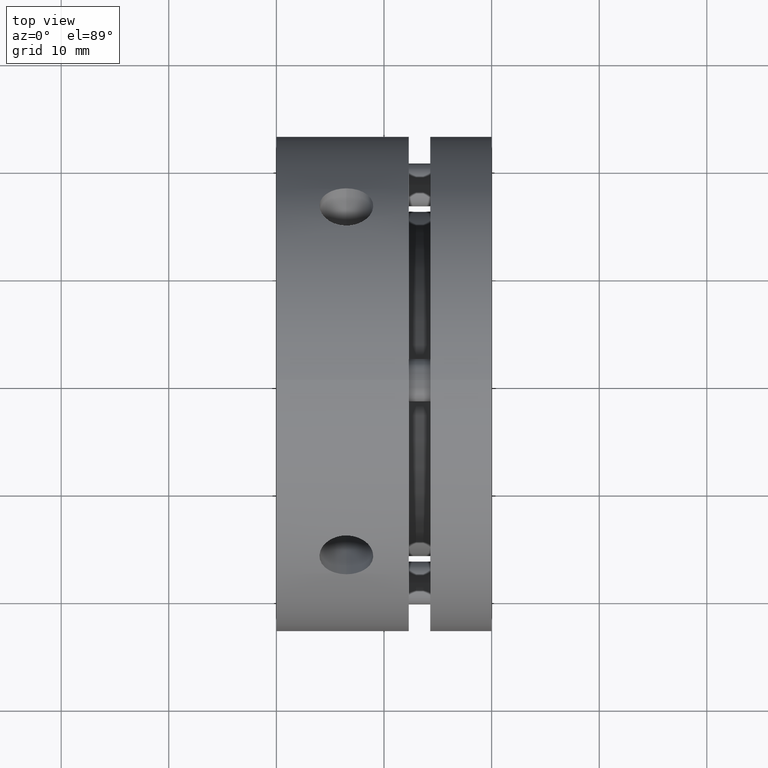
[diagram: clean part render]
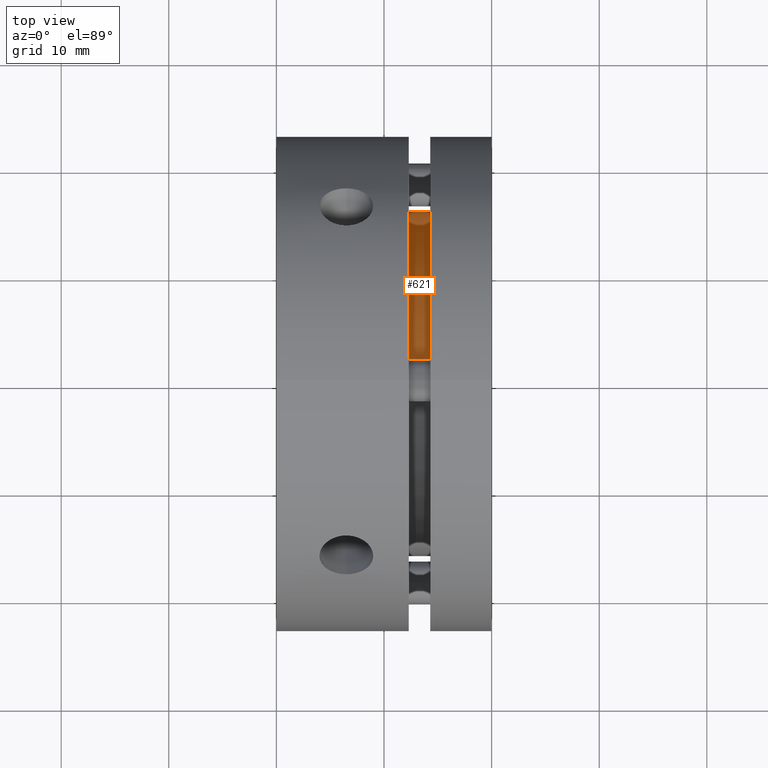
[diagram: same view with one face highlighted and labeled with its STEP entity id]
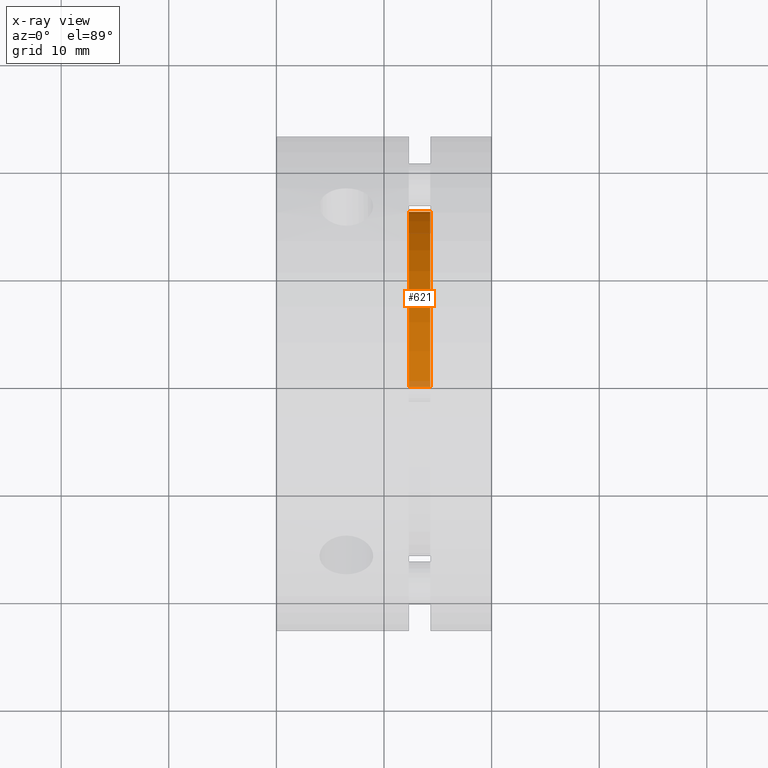
[diagram: x-ray of the same camera — body ghosted, the highlighted face saturated]
A machine part, top view. The second image highlights one B-rep face of the part: STEP entity #621.
The next image is the same camera in x-ray: the body ghosted, the highlighted face saturated — about 3% of this face is hidden behind the body in this view.
In plain terms, the highlighted cylindrical surface (partial cylindrical patch) has radius 16 mm, axis along (-1, 0, 0).
Its self-contained STEP definition (entity closure, byte-faithful):
#304 = CIRCLE ( 'NONE', #2280, 16.00000000000000000 ) ;
#310 = CIRCLE ( 'NONE', #2284, 16.00000000000000000 ) ;
#350 = LINE ( 'NONE', #886, #354 ) ;
#352 = LINE ( 'NONE', #892, #358 ) ;
#354 = VECTOR ( 'NONE', #883, 1000.000000000000000 ) ;
#358 = VECTOR ( 'NONE', #893, 1000.000000000000000 ) ;
#621 = ADVANCED_FACE ( 'NONE', ( #1938 ), #1946, .T. ) ;
#852 = CARTESIAN_POINT ( 'NONE',  ( 14.29999999999999900, 0.0000000000000000000, 0.0000000000000000000 ) ) ;
#853 = DIRECTION ( 'NONE',  ( -1.000000000000000000, 0.0000000000000000000, 0.0000000000000000000 ) ) ;
#854 = DIRECTION ( 'NONE',  ( 0.0000000000000000000, 0.0000000000000000000, 1.000000000000000000 ) ) ;
#869 = CARTESIAN_POINT ( 'NONE',  ( 12.30000000000000100, 0.0000000000000000000, 0.0000000000000000000 ) ) ;
#870 = DIRECTION ( 'NONE',  ( 1.000000000000000000, -0.0000000000000000000, -0.0000000000000000000 ) ) ;
#871 = DIRECTION ( 'NONE',  ( 0.0000000000000000000, 0.0000000000000000000, 1.000000000000000000 ) ) ;
#883 = DIRECTION ( 'NONE',  ( -1.000000000000000000, 0.0000000000000000000, 0.0000000000000000000 ) ) ;
#886 = CARTESIAN_POINT ( 'NONE',  ( 13.30000000000000100, 1.959434878635765100E-015, -16.00000000000000000 ) ) ;
#892 = CARTESIAN_POINT ( 'NONE',  ( 13.30000000000000100, 0.0000000000000000000, 16.00000000000000000 ) ) ;
#893 = DIRECTION ( 'NONE',  ( -1.000000000000000000, 0.0000000000000000000, 0.0000000000000000000 ) ) ;
#1555 = VERTEX_POINT ( 'NONE', #3433 ) ;
#1564 = VERTEX_POINT ( 'NONE', #3440 ) ;
#1569 = VERTEX_POINT ( 'NONE', #3445 ) ;
#1599 = VERTEX_POINT ( 'NONE', #3475 ) ;
#1752 = EDGE_LOOP ( 'NONE', ( #2473, #2449, #2452, #2467 ) ) ;
#1938 = FACE_OUTER_BOUND ( 'NONE', #1752, .T. ) ;
#1946 = CYLINDRICAL_SURFACE ( 'NONE', #2559, 16.00000000000000000 ) ;
#2280 = AXIS2_PLACEMENT_3D ( 'NONE', #852, #853, #854 ) ;
#2284 = AXIS2_PLACEMENT_3D ( 'NONE', #869, #870, #871 ) ;
#2340 = EDGE_CURVE ( 'NONE', #1569, #1555, #304, .T. ) ;
#2346 = EDGE_CURVE ( 'NONE', #1564, #1599, #310, .T. ) ;
#2355 = EDGE_CURVE ( 'NONE', #1555, #1564, #350, .T. ) ;
#2356 = EDGE_CURVE ( 'NONE', #1569, #1599, #352, .T. ) ;
#2449 = ORIENTED_EDGE ( 'NONE', *, *, #2355, .T. ) ;
#2452 = ORIENTED_EDGE ( 'NONE', *, *, #2346, .T. ) ;
#2467 = ORIENTED_EDGE ( 'NONE', *, *, #2356, .F. ) ;
#2473 = ORIENTED_EDGE ( 'NONE', *, *, #2340, .T. ) ;
#2559 = AXIS2_PLACEMENT_3D ( 'NONE', #2938, #2936, #2934 ) ;
#2934 = DIRECTION ( 'NONE',  ( 0.0000000000000000000, 0.0000000000000000000, 1.000000000000000000 ) ) ;
#2936 = DIRECTION ( 'NONE',  ( -1.000000000000000000, 0.0000000000000000000, 0.0000000000000000000 ) ) ;
#2938 = CARTESIAN_POINT ( 'NONE',  ( 13.30000000000000100, 0.0000000000000000000, 0.0000000000000000000 ) ) ;
#3433 = CARTESIAN_POINT ( 'NONE',  ( 14.29999999999999900, 1.959434878635765100E-015, -16.00000000000000000 ) ) ;
#3440 = CARTESIAN_POINT ( 'NONE',  ( 12.30000000000000100, 1.959434878635765100E-015, -16.00000000000000000 ) ) ;
#3445 = CARTESIAN_POINT ( 'NONE',  ( 14.29999999999999900, 0.0000000000000000000, 16.00000000000000000 ) ) ;
#3475 = CARTESIAN_POINT ( 'NONE',  ( 12.30000000000000100, 0.0000000000000000000, 16.00000000000000000 ) ) ;